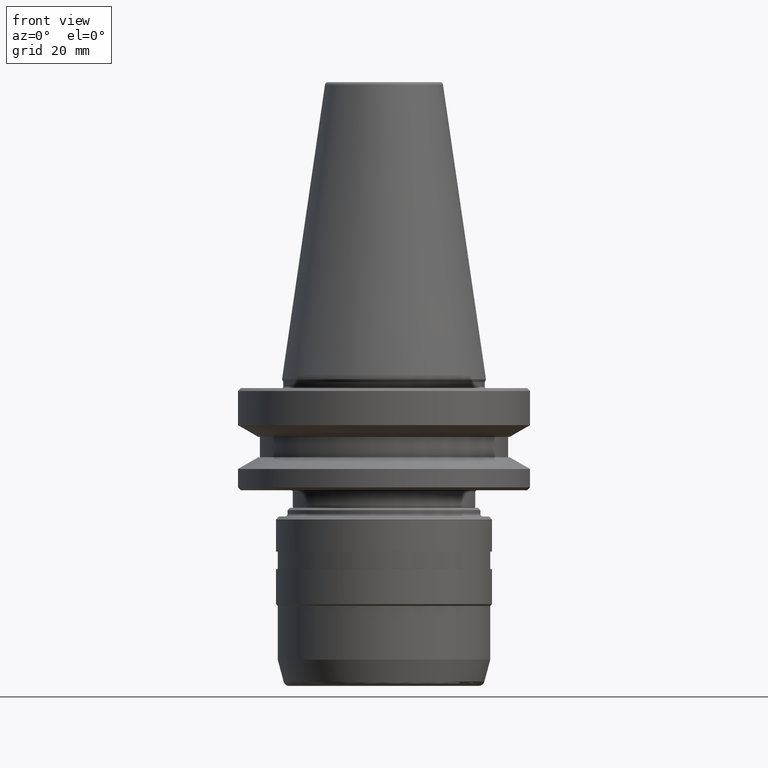
[diagram: clean part render]
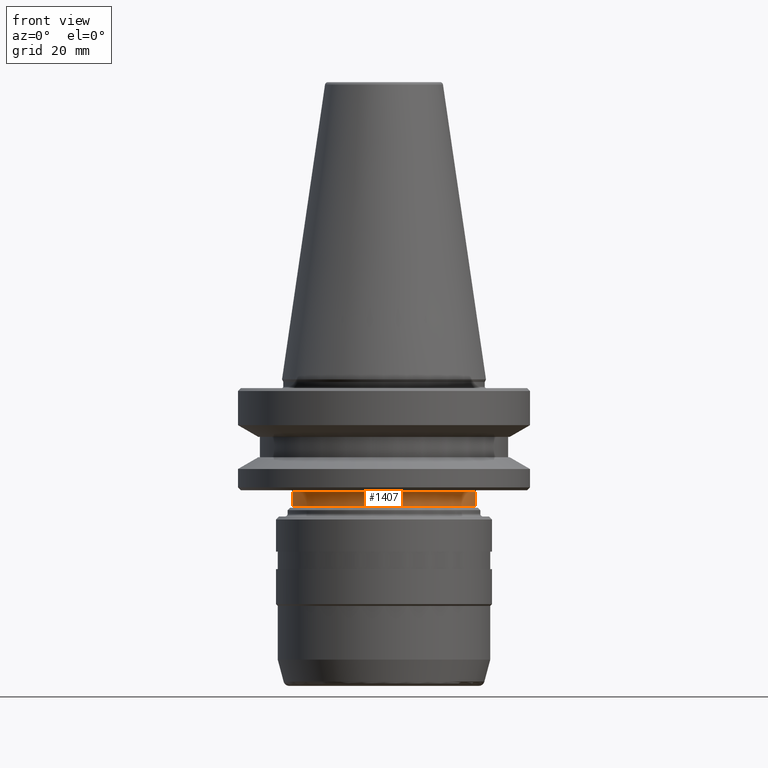
[diagram: same view with one face highlighted and labeled with its STEP entity id]
A machine part, front view. The second image highlights one B-rep face of the part: STEP entity #1407.
In plain terms, the highlighted cylindrical surface (partial cylindrical patch) has radius 31.25 mm, axis along (-0, -0, 1).
Its self-contained STEP definition (entity closure, byte-faithful):
#4 = CIRCLE ( 'NONE', #359, 31.25000000000183300 ) ;
#25 = VERTEX_POINT ( 'NONE', #322 ) ;
#41 = CARTESIAN_POINT ( 'NONE',  ( -31.25000000000163800, 3.827021247335679300E-015, 117.2709046859995500 ) ) ;
#71 = CARTESIAN_POINT ( 'NONE',  ( 0.0000000000000000000, 0.0000000000000000000, 117.2709046859995500 ) ) ;
#121 = DIRECTION ( 'NONE',  ( 1.000000000000000000, 0.0000000000000000000, 0.0000000000000000000 ) ) ;
#152 = CARTESIAN_POINT ( 'NONE',  ( -31.25000000000152800, 3.827021247335665100E-015, -43.50000000000074600 ) ) ;
#234 = AXIS2_PLACEMENT_3D ( 'NONE', #1152, #741, #1379 ) ;
#250 = ORIENTED_EDGE ( 'NONE', *, *, #1183, .F. ) ;
#313 = CARTESIAN_POINT ( 'NONE',  ( 31.25000000000163800, 0.0000000000000000000, 117.2709046859995500 ) ) ;
#322 = CARTESIAN_POINT ( 'NONE',  ( 31.25000000000152800, 0.0000000000000000000, -43.50000000000074600 ) ) ;
#346 = DIRECTION ( 'NONE',  ( 1.000000000000000000, 0.0000000000000000000, 0.0000000000000000000 ) ) ;
#359 = AXIS2_PLACEMENT_3D ( 'NONE', #1671, #916, #121 ) ;
#374 = LINE ( 'NONE', #41, #901 ) ;
#408 = CARTESIAN_POINT ( 'NONE',  ( -31.25000000000183300, 3.827021247335702900E-015, -38.50000000000130000 ) ) ;
#520 = EDGE_CURVE ( 'NONE', #750, #25, #1455, .T. ) ;
#593 = ORIENTED_EDGE ( 'NONE', *, *, #976, .F. ) ;
#622 = CYLINDRICAL_SURFACE ( 'NONE', #1267, 31.25000000000163800 ) ;
#640 = EDGE_LOOP ( 'NONE', ( #250, #1024, #1560, #593 ) ) ;
#697 = DIRECTION ( 'NONE',  ( -0.0000000000000000000, -0.0000000000000000000, 1.000000000000000000 ) ) ;
#730 = DIRECTION ( 'NONE',  ( -0.0000000000000000000, -0.0000000000000000000, 1.000000000000000000 ) ) ;
#741 = DIRECTION ( 'NONE',  ( -0.0000000000000000000, -0.0000000000000000000, 1.000000000000000000 ) ) ;
#750 = VERTEX_POINT ( 'NONE', #152 ) ;
#775 = CARTESIAN_POINT ( 'NONE',  ( 31.25000000000183300, 0.0000000000000000000, -38.50000000000130000 ) ) ;
#901 = VECTOR ( 'NONE', #956, 1000.000000000000000 ) ;
#916 = DIRECTION ( 'NONE',  ( -0.0000000000000000000, -0.0000000000000000000, 1.000000000000000000 ) ) ;
#956 = DIRECTION ( 'NONE',  ( -0.0000000000000000000, -0.0000000000000000000, 1.000000000000000000 ) ) ;
#976 = EDGE_CURVE ( 'NONE', #1093, #1583, #4, .T. ) ;
#1024 = ORIENTED_EDGE ( 'NONE', *, *, #520, .T. ) ;
#1093 = VERTEX_POINT ( 'NONE', #408 ) ;
#1152 = CARTESIAN_POINT ( 'NONE',  ( 0.0000000000000000000, 0.0000000000000000000, -43.50000000000074600 ) ) ;
#1183 = EDGE_CURVE ( 'NONE', #750, #1093, #374, .T. ) ;
#1227 = EDGE_CURVE ( 'NONE', #25, #1583, #1242, .T. ) ;
#1242 = LINE ( 'NONE', #313, #1501 ) ;
#1267 = AXIS2_PLACEMENT_3D ( 'NONE', #71, #730, #346 ) ;
#1356 = FACE_OUTER_BOUND ( 'NONE', #640, .T. ) ;
#1379 = DIRECTION ( 'NONE',  ( 1.000000000000000000, 0.0000000000000000000, 0.0000000000000000000 ) ) ;
#1407 = ADVANCED_FACE ( 'NONE', ( #1356 ), #622, .T. ) ;
#1455 = CIRCLE ( 'NONE', #234, 31.25000000000144200 ) ;
#1501 = VECTOR ( 'NONE', #697, 1000.000000000000000 ) ;
#1560 = ORIENTED_EDGE ( 'NONE', *, *, #1227, .T. ) ;
#1583 = VERTEX_POINT ( 'NONE', #775 ) ;
#1671 = CARTESIAN_POINT ( 'NONE',  ( 0.0000000000000000000, 0.0000000000000000000, -38.50000000000130000 ) ) ;